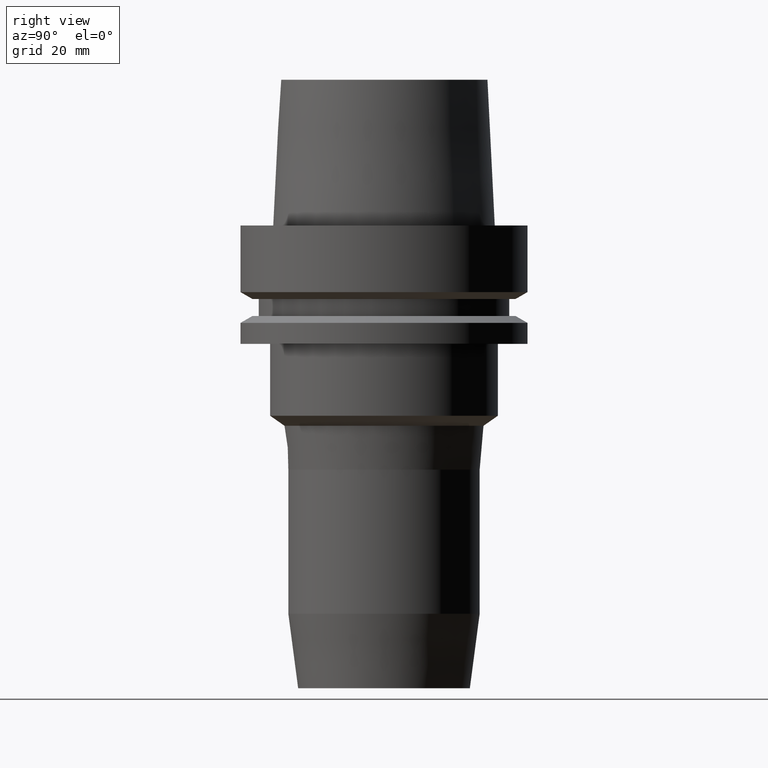
[diagram: clean part render]
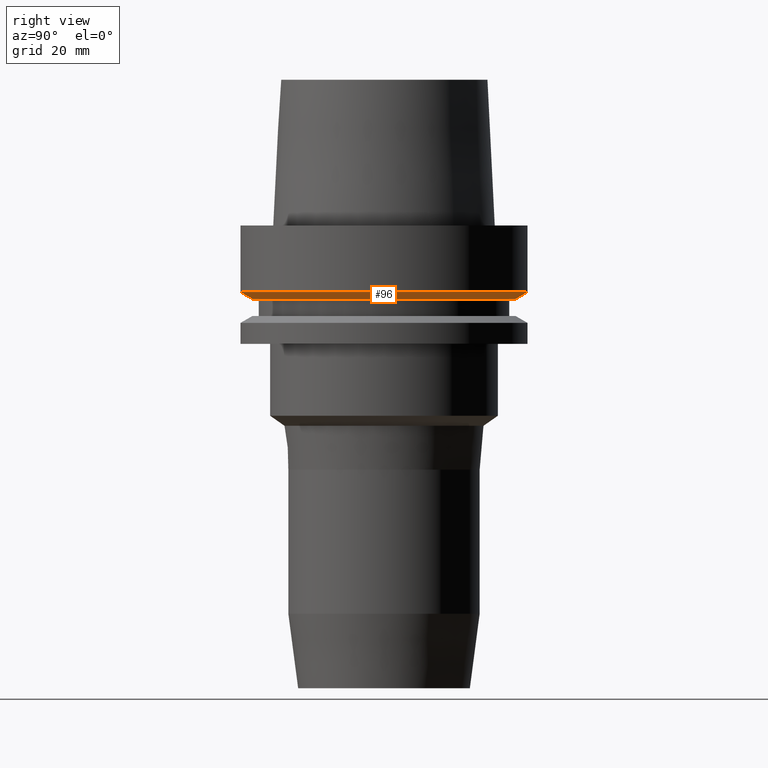
[diagram: same view with one face highlighted and labeled with its STEP entity id]
A machine part, right view. The second image highlights one B-rep face of the part: STEP entity #96.
In plain terms, the highlighted conical surface has half-angle 60 deg.
Its self-contained STEP definition (entity closure, byte-faithful):
#96=ADVANCED_FACE('Unnamed[1]',(#217,#218),#219,.T.);
#101=EDGE_CURVE('Unnamed[1]',#225,#225,#226,.T.);
#133=EDGE_CURVE('Unnamed[1]',#276,#276,#277,.T.);
#217=FACE_BOUND('',#372,.T.);
#218=FACE_BOUND('',#373,.T.);
#219=CONICAL_SURFACE('',#374,30.1987976320959,1.04719755119657);
#225=VERTEX_POINT('',#382);
#226=CIRCLE('',#383,31.5);
#276=VERTEX_POINT('',#446);
#277=CIRCLE('',#447,28.8975952641919);
#372=EDGE_LOOP('',(#528));
#373=EDGE_LOOP('',(#529));
#374=AXIS2_PLACEMENT_3D('',#530,#531,#532);
#382=CARTESIAN_POINT('',(8.95369947681261E-016,31.5,-14.6225009252407));
#383=AXIS2_PLACEMENT_3D('',#538,#539,#540);
#446=CARTESIAN_POINT('',(9.87371481812551E-016,28.8975952641919,-16.125));
#447=AXIS2_PLACEMENT_3D('',#595,#596,#597);
#528=ORIENTED_EDGE('',*,*,#133,.F.);
#529=ORIENTED_EDGE('',*,*,#101,.T.);
#530=CARTESIAN_POINT('',(9.41370714746907E-016,1.88274142949381E-015,-15.3737504626203));
#531=DIRECTION('',(-6.12323399573677E-017,-1.22464679914735E-016,1.0));
#532=DIRECTION('',(-1.23259516440783E-032,1.0,1.22464679914735E-016));
#538=CARTESIAN_POINT('',(8.95369947681262E-016,1.79073989536252E-015,-14.6225009252407));
#539=DIRECTION('',(6.12323399573677E-017,1.22464679914735E-016,-1.0));
#540=DIRECTION('',(-1.23259516440783E-032,1.0,1.22464679914735E-016));
#595=CARTESIAN_POINT('',(9.87371481812552E-016,1.9747429636251E-015,-16.125));
#596=DIRECTION('',(6.12323399573677E-017,1.22464679914735E-016,-1.0));
#597=DIRECTION('',(-1.23259516440783E-032,1.0,1.22464679914735E-016));